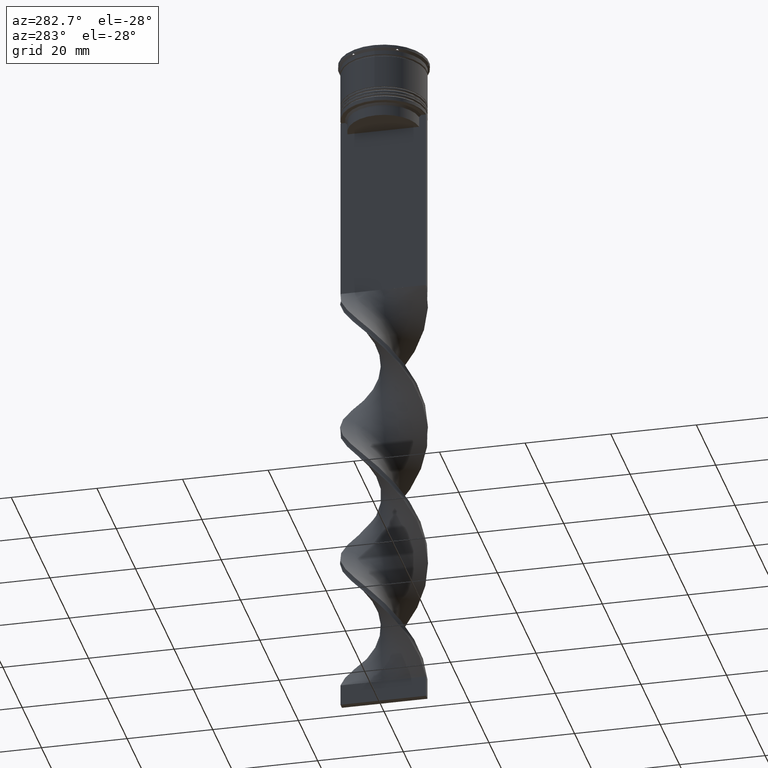
[diagram: clean part render]
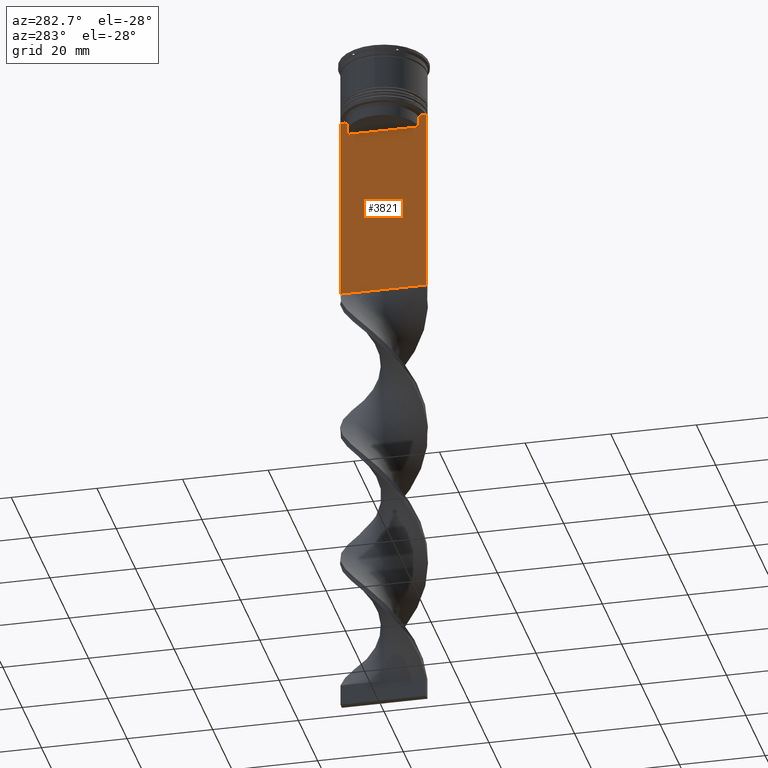
[diagram: same view with one face highlighted and labeled with its STEP entity id]
A machine part, auxiliary view. The second image highlights one B-rep face of the part: STEP entity #3821.
In plain terms, the highlighted planar face has unit normal (-1, 0, 0).
Its self-contained STEP definition (entity closure, byte-faithful):
#15 = VECTOR ( 'NONE', #2531, 1000.000000000000000 ) ;
#116 = EDGE_CURVE ( 'NONE', #1037, #2718, #692, .T. ) ;
#128 = VECTOR ( 'NONE', #939, 1000.000000000000000 ) ;
#146 = FACE_OUTER_BOUND ( 'NONE', #1436, .T. ) ;
#152 = VERTEX_POINT ( 'NONE', #3428 ) ;
#165 = PLANE ( 'NONE',  #2321 ) ;
#218 = EDGE_CURVE ( 'NONE', #479, #3077, #3137, .T. ) ;
#308 = VERTEX_POINT ( 'NONE', #3453 ) ;
#473 = VECTOR ( 'NONE', #1432, 1000.000000000000000 ) ;
#479 = VERTEX_POINT ( 'NONE', #2026 ) ;
#480 = CARTESIAN_POINT ( 'NONE',  ( -0.7499999999999997780, 9.999999999999998224, -58.00000000000000000 ) ) ;
#564 = ORIENTED_EDGE ( 'NONE', *, *, #2342, .F. ) ;
#610 = VERTEX_POINT ( 'NONE', #2800 ) ;
#628 = B_SPLINE_CURVE_WITH_KNOTS ( 'NONE', 3,
 ( #1911, #3116, #1012, #1069 ),
 .UNSPECIFIED., .F., .F.,
 ( 4, 4 ),
 ( 0.03866293624047253963, 0.03937282246709321309 ),
 .UNSPECIFIED. ) ;
#692 = LINE ( 'NONE', #3692, #3241 ) ;
#738 = ORIENTED_EDGE ( 'NONE', *, *, #886, .F. ) ;
#756 = ORIENTED_EDGE ( 'NONE', *, *, #1928, .F. ) ;
#778 = LINE ( 'NONE', #2852, #3337 ) ;
#823 = LINE ( 'NONE', #2072, #2895 ) ;
#827 = DIRECTION ( 'NONE',  ( 0.000000000000000000, -1.000000000000000000, 0.000000000000000000 ) ) ;
#883 = DIRECTION ( 'NONE',  ( 0.000000000000000000, 0.000000000000000000, -1.000000000000000000 ) ) ;
#886 = EDGE_CURVE ( 'NONE', #3077, #3102, #2101, .T. ) ;
#918 = CARTESIAN_POINT ( 'NONE',  ( -0.7499999999999997780, 8.400000000000003908, -17.00000000000000000 ) ) ;
#939 = DIRECTION ( 'NONE',  ( 0.000000000000000000, -1.000000000000000000, 0.000000000000000000 ) ) ;
#971 = CARTESIAN_POINT ( 'NONE',  ( -0.7499999999999997780, 9.999999999999998224, -14.00000000000000178 ) ) ;
#972 = LINE ( 'NONE', #1505, #1289 ) ;
#1012 = CARTESIAN_POINT ( 'NONE',  ( -0.7499999999999997780, -8.701063080777123204, -14.16668447713511547 ) ) ;
#1018 = ORIENTED_EDGE ( 'NONE', *, *, #1209, .F. ) ;
#1037 = VERTEX_POINT ( 'NONE', #971 ) ;
#1042 = VECTOR ( 'NONE', #2349, 1000.000000000000000 ) ;
#1051 = DIRECTION ( 'NONE',  ( -1.000000000000000000, 0.000000000000000000, 0.000000000000000000 ) ) ;
#1069 = CARTESIAN_POINT ( 'NONE',  ( -0.7499999999999997780, -8.868342573446296839, -14.00000000000000178 ) ) ;
#1086 = CARTESIAN_POINT ( 'NONE',  ( -0.7499999999999997780, -10.00000000000000533, -58.00000000000000000 ) ) ;
#1152 = CARTESIAN_POINT ( 'NONE',  ( -0.7499999999999997780, -9.871550030263740894, -14.00000000000000178 ) ) ;
#1165 = LINE ( 'NONE', #1483, #3644 ) ;
#1176 = EDGE_CURVE ( 'NONE', #3102, #610, #972, .T. ) ;
#1209 = EDGE_CURVE ( 'NONE', #3822, #479, #3279, .T. ) ;
#1289 = VECTOR ( 'NONE', #1890, 1000.000000000000000 ) ;
#1310 = CARTESIAN_POINT ( 'NONE',  ( -0.7499999999999997780, 8.868342573446296839, -14.00000000000000178 ) ) ;
#1432 = DIRECTION ( 'NONE',  ( 0.000000000000000000, 1.000000000000000000, 0.000000000000000000 ) ) ;
#1436 = EDGE_LOOP ( 'NONE', ( #1018, #3930, #1783, #3747, #2233, #564, #3058, #756, #2985, #3352, #738, #2647 ) ) ;
#1483 = CARTESIAN_POINT ( 'NONE',  ( -0.7499999999999997780, -10.00000000000000533, -14.00000000000000178 ) ) ;
#1503 = CARTESIAN_POINT ( 'NONE',  ( -0.7499999999999997780, -10.00000000000000533, -14.00000000000000178 ) ) ;
#1505 = CARTESIAN_POINT ( 'NONE',  ( -0.7499999999999997780, -8.366450860430608927, 0.000000000000000000 ) ) ;
#1635 = EDGE_CURVE ( 'NONE', #1037, #2260, #1165, .T. ) ;
#1640 = DIRECTION ( 'NONE',  ( 0.000000000000000000, 0.000000000000000000, -1.000000000000000000 ) ) ;
#1783 = ORIENTED_EDGE ( 'NONE', *, *, #1635, .F. ) ;
#1817 = VERTEX_POINT ( 'NONE', #3782 ) ;
#1890 = DIRECTION ( 'NONE',  ( -0.000000000000000000, -0.000000000000000000, 1.000000000000000000 ) ) ;
#1911 = CARTESIAN_POINT ( 'NONE',  ( -0.7499999999999997780, -8.366450860430608927, -14.50000000000000000 ) ) ;
#1928 = EDGE_CURVE ( 'NONE', #1817, #2358, #2702, .T. ) ;
#1948 = CARTESIAN_POINT ( 'NONE',  ( -0.7499999999999997780, 8.366450860430608927, 0.000000000000000000 ) ) ;
#2026 = CARTESIAN_POINT ( 'NONE',  ( -0.7499999999999997780, 8.366450860430608927, -14.50000000000000000 ) ) ;
#2072 = CARTESIAN_POINT ( 'NONE',  ( -0.7499999999999997780, -10.00000000000000533, 6.056171120131581098 ) ) ;
#2089 = CARTESIAN_POINT ( 'NONE',  ( -0.7499999999999997780, -10.00000000000000533, -14.00000000000000178 ) ) ;
#2101 = LINE ( 'NONE', #918, #128 ) ;
#2107 = CARTESIAN_POINT ( 'NONE',  ( -0.7499999999999997780, -8.366450860430608927, -17.00000000000000000 ) ) ;
#2233 = ORIENTED_EDGE ( 'NONE', *, *, #2676, .F. ) ;
#2260 = VERTEX_POINT ( 'NONE', #2920 ) ;
#2321 = AXIS2_PLACEMENT_3D ( 'NONE', #2576, #1051, #3809 ) ;
#2342 = EDGE_CURVE ( 'NONE', #308, #152, #823, .T. ) ;
#2349 = DIRECTION ( 'NONE',  ( 0.000000000000000000, -1.000000000000000000, 0.000000000000000000 ) ) ;
#2352 = DIRECTION ( 'NONE',  ( 0.000000000000000000, -1.000000000000000000, 0.000000000000000000 ) ) ;
#2358 = VERTEX_POINT ( 'NONE', #1152 ) ;
#2359 = CARTESIAN_POINT ( 'NONE',  ( -0.7499999999999997780, 8.366450860430608927, -14.50000000000000000 ) ) ;
#2531 = DIRECTION ( 'NONE',  ( 0.000000000000000000, 0.000000000000000000, -1.000000000000000000 ) ) ;
#2576 = CARTESIAN_POINT ( 'NONE',  ( -0.7499999999999997780, -10.00000000000000533, 6.056171120131581098 ) ) ;
#2647 = ORIENTED_EDGE ( 'NONE', *, *, #218, .F. ) ;
#2676 = EDGE_CURVE ( 'NONE', #152, #2718, #2948, .T. ) ;
#2702 = LINE ( 'NONE', #1503, #2952 ) ;
#2718 = VERTEX_POINT ( 'NONE', #480 ) ;
#2753 = CARTESIAN_POINT ( 'NONE',  ( -0.7499999999999997780, 8.701063075415252257, -14.16668448247791723 ) ) ;
#2797 = CARTESIAN_POINT ( 'NONE',  ( -0.7499999999999997780, 8.366450860430608927, -17.00000000000000000 ) ) ;
#2800 = CARTESIAN_POINT ( 'NONE',  ( -0.7499999999999997780, -8.366450860430608927, -14.50000000000000000 ) ) ;
#2814 = DIRECTION ( 'NONE',  ( 0.000000000000000000, -1.000000000000000000, 0.000000000000000000 ) ) ;
#2852 = CARTESIAN_POINT ( 'NONE',  ( -0.7499999999999997780, -10.00000000000000533, -14.00000000000000178 ) ) ;
#2895 = VECTOR ( 'NONE', #883, 1000.000000000000000 ) ;
#2920 = CARTESIAN_POINT ( 'NONE',  ( -0.7499999999999997780, 9.871550030263740894, -14.00000000000000178 ) ) ;
#2934 = EDGE_CURVE ( 'NONE', #2260, #3822, #3893, .T. ) ;
#2948 = LINE ( 'NONE', #1086, #473 ) ;
#2952 = VECTOR ( 'NONE', #2352, 1000.000000000000000 ) ;
#2985 = ORIENTED_EDGE ( 'NONE', *, *, #3316, .F. ) ;
#3058 = ORIENTED_EDGE ( 'NONE', *, *, #3372, .F. ) ;
#3077 = VERTEX_POINT ( 'NONE', #2797 ) ;
#3102 = VERTEX_POINT ( 'NONE', #2107 ) ;
#3116 = CARTESIAN_POINT ( 'NONE',  ( -0.7499999999999997780, -8.533766903463440912, -14.33335220807192201 ) ) ;
#3137 = LINE ( 'NONE', #1948, #15 ) ;
#3241 = VECTOR ( 'NONE', #1640, 1000.000000000000000 ) ;
#3279 = B_SPLINE_CURVE_WITH_KNOTS ( 'NONE', 3,
 ( #3907, #2753, #3306, #2359 ),
 .UNSPECIFIED., .F., .F.,
 ( 4, 4 ),
 ( 0.01512225952876174867, 0.01583070519299695222 ),
 .UNSPECIFIED. ) ;
#3306 = CARTESIAN_POINT ( 'NONE',  ( -0.7499999999999997780, 8.533766897779926808, -14.33335221373273782 ) ) ;
#3316 = EDGE_CURVE ( 'NONE', #610, #1817, #628, .T. ) ;
#3337 = VECTOR ( 'NONE', #2814, 1000.000000000000000 ) ;
#3352 = ORIENTED_EDGE ( 'NONE', *, *, #1176, .F. ) ;
#3372 = EDGE_CURVE ( 'NONE', #2358, #308, #778, .T. ) ;
#3428 = CARTESIAN_POINT ( 'NONE',  ( -0.7499999999999998890, -10.00000000000000533, -58.00000000000000000 ) ) ;
#3453 = CARTESIAN_POINT ( 'NONE',  ( -0.7499999999999997780, -10.00000000000000533, -14.00000000000000178 ) ) ;
#3644 = VECTOR ( 'NONE', #827, 1000.000000000000000 ) ;
#3692 = CARTESIAN_POINT ( 'NONE',  ( -0.7499999999999997780, 9.999999999999998224, 6.056171120131581098 ) ) ;
#3747 = ORIENTED_EDGE ( 'NONE', *, *, #116, .T. ) ;
#3782 = CARTESIAN_POINT ( 'NONE',  ( -0.7499999999999997780, -8.868342573446296839, -14.00000000000000178 ) ) ;
#3809 = DIRECTION ( 'NONE',  ( 0.000000000000000000, 0.000000000000000000, 1.000000000000000000 ) ) ;
#3821 = ADVANCED_FACE ( 'NONE', ( #146 ), #165, .T. ) ;
#3822 = VERTEX_POINT ( 'NONE', #1310 ) ;
#3893 = LINE ( 'NONE', #2089, #1042 ) ;
#3907 = CARTESIAN_POINT ( 'NONE',  ( -0.7499999999999997780, 8.868342573446296839, -14.00000000000000178 ) ) ;
#3930 = ORIENTED_EDGE ( 'NONE', *, *, #2934, .F. ) ;